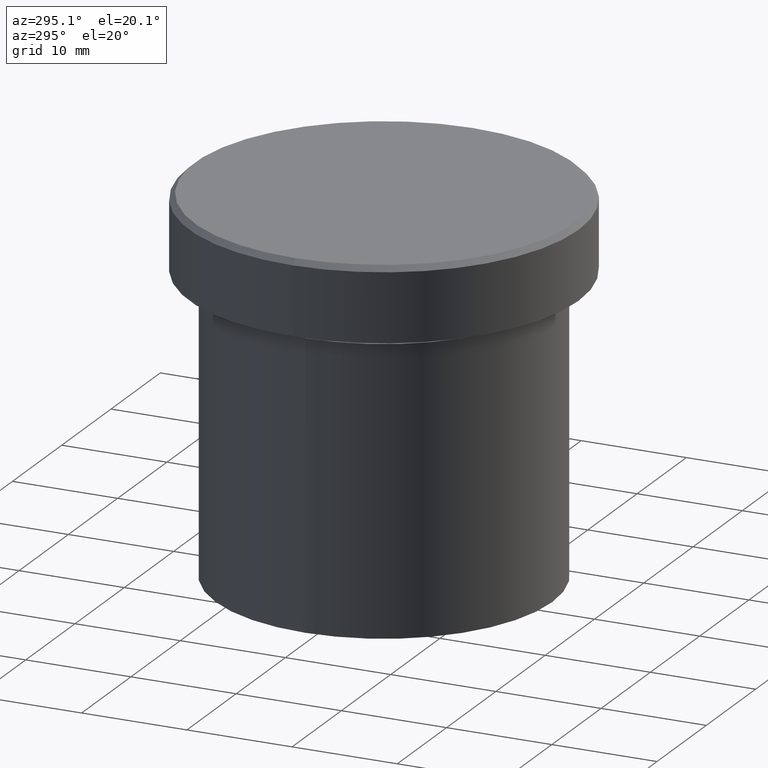
[diagram: clean part render]
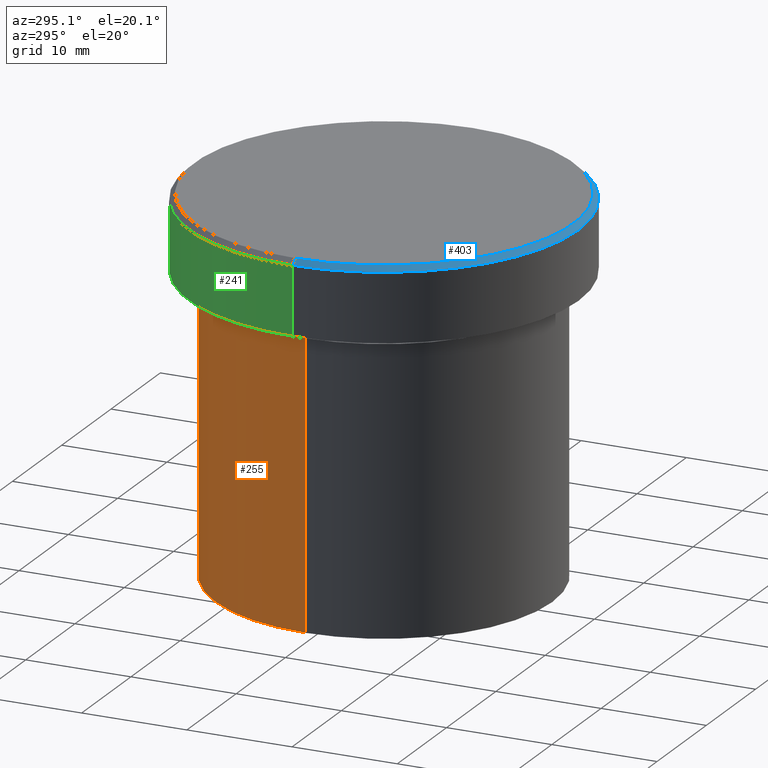
[diagram: same view with three faces highlighted in distinct colors, each labeled with its STEP entity id]
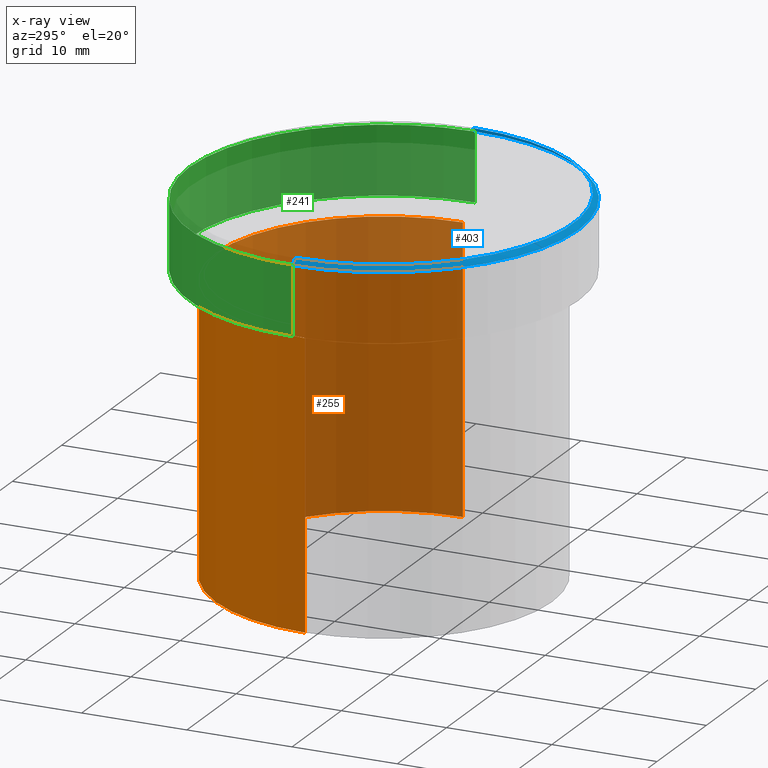
[diagram: x-ray of the same camera — body ghosted, the three highlighted faces saturated]
A machine part, auxiliary view with three faces highlighted in distinct colors.
The next image is the same camera in x-ray (body ghosted, the three faces saturated) — at least one of them is partly hidden behind the body in this view.
Their STEP definitions:

[orange] entity #255 — the highlighted cylindrical surface (partial cylindrical patch) has radius 16 mm, axis along (-0, -0, 1).
#43 = DIRECTION ( 'NONE',  ( -0.000000000000000000, -0.000000000000000000, 1.000000000000000000 ) ) ;
#45 = FACE_OUTER_BOUND ( 'NONE', #295, .T. ) ;
#56 = CARTESIAN_POINT ( 'NONE',  ( 16.00000000000000000, 0.000000000000000000, -8.000000000000000000 ) ) ;
#60 = VERTEX_POINT ( 'NONE', #56 ) ;
#61 = VERTEX_POINT ( 'NONE', #222 ) ;
#68 = VERTEX_POINT ( 'NONE', #287 ) ;
#86 = EDGE_CURVE ( 'NONE', #60, #61, #267, .T. ) ;
#94 = ORIENTED_EDGE ( 'NONE', *, *, #230, .T. ) ;
#103 = AXIS2_PLACEMENT_3D ( 'NONE', #242, #363, #205 ) ;
#118 = CARTESIAN_POINT ( 'NONE',  ( 0.000000000000000000, 0.000000000000000000, -8.000000000000000000 ) ) ;
#121 = AXIS2_PLACEMENT_3D ( 'NONE', #118, #317, #246 ) ;
#129 = CARTESIAN_POINT ( 'NONE',  ( -16.00000000000000000, 1.959434878635765131E-15, -35.00000000000000000 ) ) ;
#140 = LINE ( 'NONE', #237, #366 ) ;
#168 = CARTESIAN_POINT ( 'NONE',  ( 0.000000000000000000, 0.000000000000000000, -35.00000000000000000 ) ) ;
#205 = DIRECTION ( 'NONE',  ( 1.000000000000000000, 0.000000000000000000, 0.000000000000000000 ) ) ;
#222 = CARTESIAN_POINT ( 'NONE',  ( -16.00000000000000000, 1.959434878635765131E-15, -8.000000000000000000 ) ) ;
#226 = VECTOR ( 'NONE', #322, 1000.000000000000000 ) ;
#227 = LINE ( 'NONE', #352, #226 ) ;
#230 = EDGE_CURVE ( 'NONE', #232, #61, #227, .T. ) ;
#232 = VERTEX_POINT ( 'NONE', #129 ) ;
#237 = CARTESIAN_POINT ( 'NONE',  ( 16.00000000000000000, 0.000000000000000000, 0.000000000000000000 ) ) ;
#242 = CARTESIAN_POINT ( 'NONE',  ( 0.000000000000000000, 0.000000000000000000, 0.000000000000000000 ) ) ;
#245 = CIRCLE ( 'NONE', #312, 16.00000000000000000 ) ;
#246 = DIRECTION ( 'NONE',  ( 1.000000000000000000, 0.000000000000000000, 0.000000000000000000 ) ) ;
#255 = ADVANCED_FACE ( 'NONE', ( #45 ), #296, .T. ) ;
#267 = CIRCLE ( 'NONE', #121, 16.00000000000000000 ) ;
#268 = DIRECTION ( 'NONE',  ( 1.000000000000000000, 0.000000000000000000, 0.000000000000000000 ) ) ;
#274 = DIRECTION ( 'NONE',  ( -0.000000000000000000, -0.000000000000000000, 1.000000000000000000 ) ) ;
#287 = CARTESIAN_POINT ( 'NONE',  ( 16.00000000000000000, 0.000000000000000000, -35.00000000000000000 ) ) ;
#291 = ORIENTED_EDGE ( 'NONE', *, *, #316, .T. ) ;
#295 = EDGE_LOOP ( 'NONE', ( #291, #94, #303, #356 ) ) ;
#296 = CYLINDRICAL_SURFACE ( 'NONE', #103, 16.00000000000000000 ) ;
#303 = ORIENTED_EDGE ( 'NONE', *, *, #86, .F. ) ;
#312 = AXIS2_PLACEMENT_3D ( 'NONE', #168, #274, #268 ) ;
#316 = EDGE_CURVE ( 'NONE', #68, #232, #245, .T. ) ;
#317 = DIRECTION ( 'NONE',  ( -0.000000000000000000, -0.000000000000000000, 1.000000000000000000 ) ) ;
#322 = DIRECTION ( 'NONE',  ( -0.000000000000000000, -0.000000000000000000, 1.000000000000000000 ) ) ;
#340 = EDGE_CURVE ( 'NONE', #68, #60, #140, .T. ) ;
#352 = CARTESIAN_POINT ( 'NONE',  ( -16.00000000000000000, 1.959434878635765131E-15, 0.000000000000000000 ) ) ;
#356 = ORIENTED_EDGE ( 'NONE', *, *, #340, .F. ) ;
#363 = DIRECTION ( 'NONE',  ( -0.000000000000000000, -0.000000000000000000, 1.000000000000000000 ) ) ;
#366 = VECTOR ( 'NONE', #43, 1000.000000000000000 ) ;

[blue] entity #403 — the highlighted conical surface has half-angle 45 deg.
#3 = VERTEX_POINT ( 'NONE', #77 ) ;
#4 = CIRCLE ( 'NONE', #54, 17.99999999999999645 ) ;
#8 = CARTESIAN_POINT ( 'NONE',  ( 18.50000000000000000, 0.000000000000000000, -0.4999999999999936162 ) ) ;
#11 = DIRECTION ( 'NONE',  ( -0.7071067811865549002, 0.000000000000000000, -0.7071067811865402453 ) ) ;
#12 = DIRECTION ( 'NONE',  ( -0.000000000000000000, -0.000000000000000000, 1.000000000000000000 ) ) ;
#13 = CIRCLE ( 'NONE', #188, 18.50000000000000000 ) ;
#14 = CONICAL_SURFACE ( 'NONE', #235, 17.99999999999999645, 0.7853981633974587151 ) ;
#28 = EDGE_CURVE ( 'NONE', #387, #161, #13, .T. ) ;
#29 = CARTESIAN_POINT ( 'NONE',  ( -17.99999999999999645, 0.000000000000000000, 0.000000000000000000 ) ) ;
#54 = AXIS2_PLACEMENT_3D ( 'NONE', #300, #12, #365 ) ;
#69 = CARTESIAN_POINT ( 'NONE',  ( -17.99999999999999645, 0.000000000000000000, 0.000000000000000000 ) ) ;
#77 = CARTESIAN_POINT ( 'NONE',  ( 17.99999999999999645, 2.234980408443919215E-15, 0.000000000000000000 ) ) ;
#96 = ORIENTED_EDGE ( 'NONE', *, *, #174, .F. ) ;
#125 = DIRECTION ( 'NONE',  ( 0.7071067811865549002, 8.659560562355021605E-17, -0.7071067811865402453 ) ) ;
#132 = ORIENTED_EDGE ( 'NONE', *, *, #262, .T. ) ;
#152 = VECTOR ( 'NONE', #11, 1000.000000000000114 ) ;
#161 = VERTEX_POINT ( 'NONE', #379 ) ;
#164 = ORIENTED_EDGE ( 'NONE', *, *, #345, .F. ) ;
#170 = CARTESIAN_POINT ( 'NONE',  ( 0.000000000000000000, 0.000000000000000000, 0.000000000000000000 ) ) ;
#174 = EDGE_CURVE ( 'NONE', #3, #387, #355, .T. ) ;
#180 = VECTOR ( 'NONE', #125, 1000.000000000000114 ) ;
#188 = AXIS2_PLACEMENT_3D ( 'NONE', #220, #280, #377 ) ;
#202 = FACE_OUTER_BOUND ( 'NONE', #228, .T. ) ;
#220 = CARTESIAN_POINT ( 'NONE',  ( 0.000000000000000000, 0.000000000000000000, -0.4999999999999936162 ) ) ;
#228 = EDGE_LOOP ( 'NONE', ( #96, #164, #132, #326 ) ) ;
#229 = VERTEX_POINT ( 'NONE', #29 ) ;
#231 = CARTESIAN_POINT ( 'NONE',  ( 17.99999999999999645, 2.204364238465235033E-15, 0.000000000000000000 ) ) ;
#235 = AXIS2_PLACEMENT_3D ( 'NONE', #170, #301, #330 ) ;
#262 = EDGE_CURVE ( 'NONE', #229, #161, #364, .T. ) ;
#280 = DIRECTION ( 'NONE',  ( 0.000000000000000000, 0.000000000000000000, -1.000000000000000000 ) ) ;
#300 = CARTESIAN_POINT ( 'NONE',  ( 0.000000000000000000, 0.000000000000000000, 0.000000000000000000 ) ) ;
#301 = DIRECTION ( 'NONE',  ( 0.000000000000000000, 0.000000000000000000, -1.000000000000000000 ) ) ;
#326 = ORIENTED_EDGE ( 'NONE', *, *, #28, .F. ) ;
#330 = DIRECTION ( 'NONE',  ( -1.000000000000000000, 0.000000000000000000, 0.000000000000000000 ) ) ;
#345 = EDGE_CURVE ( 'NONE', #229, #3, #4, .T. ) ;
#355 = LINE ( 'NONE', #231, #180 ) ;
#364 = LINE ( 'NONE', #69, #152 ) ;
#365 = DIRECTION ( 'NONE',  ( 1.000000000000000000, 0.000000000000000000, 0.000000000000000000 ) ) ;
#377 = DIRECTION ( 'NONE',  ( 1.000000000000000000, 0.000000000000000000, 0.000000000000000000 ) ) ;
#379 = CARTESIAN_POINT ( 'NONE',  ( -18.50000000000000000, 2.265596578422603396E-15, -0.4999999999999936162 ) ) ;
#387 = VERTEX_POINT ( 'NONE', #8 ) ;
#403 = ADVANCED_FACE ( 'NONE', ( #202 ), #14, .T. ) ;

[green] entity #241 — the highlighted cylindrical surface (partial cylindrical patch) has radius 18.5 mm, axis along (-0, -0, 1).
#7 = EDGE_LOOP ( 'NONE', ( #349, #42, #128, #264 ) ) ;
#8 = CARTESIAN_POINT ( 'NONE',  ( 18.50000000000000000, 0.000000000000000000, -0.4999999999999936162 ) ) ;
#18 = CARTESIAN_POINT ( 'NONE',  ( -18.50000000000000000, 2.265596578422603396E-15, -6.999999999999998224 ) ) ;
#42 = ORIENTED_EDGE ( 'NONE', *, *, #111, .T. ) ;
#47 = CIRCLE ( 'NONE', #225, 18.50000000000000000 ) ;
#55 = CARTESIAN_POINT ( 'NONE',  ( -18.50000000000000000, 2.265596578422603396E-15, 0.000000000000000000 ) ) ;
#58 = DIRECTION ( 'NONE',  ( 0.000000000000000000, 0.000000000000000000, -1.000000000000000000 ) ) ;
#67 = VECTOR ( 'NONE', #334, 1000.000000000000000 ) ;
#78 = AXIS2_PLACEMENT_3D ( 'NONE', #290, #58, #361 ) ;
#95 = CARTESIAN_POINT ( 'NONE',  ( 0.000000000000000000, 0.000000000000000000, 0.000000000000000000 ) ) ;
#111 = EDGE_CURVE ( 'NONE', #139, #161, #114, .T. ) ;
#114 = LINE ( 'NONE', #55, #407 ) ;
#128 = ORIENTED_EDGE ( 'NONE', *, *, #162, .T. ) ;
#133 = EDGE_CURVE ( 'NONE', #159, #139, #47, .T. ) ;
#138 = LINE ( 'NONE', #302, #67 ) ;
#139 = VERTEX_POINT ( 'NONE', #18 ) ;
#147 = AXIS2_PLACEMENT_3D ( 'NONE', #95, #157, #325 ) ;
#157 = DIRECTION ( 'NONE',  ( -0.000000000000000000, -0.000000000000000000, 1.000000000000000000 ) ) ;
#159 = VERTEX_POINT ( 'NONE', #179 ) ;
#161 = VERTEX_POINT ( 'NONE', #379 ) ;
#162 = EDGE_CURVE ( 'NONE', #161, #387, #281, .T. ) ;
#178 = DIRECTION ( 'NONE',  ( -0.000000000000000000, -0.000000000000000000, 1.000000000000000000 ) ) ;
#179 = CARTESIAN_POINT ( 'NONE',  ( 18.50000000000000000, 0.000000000000000000, -6.999999999999998224 ) ) ;
#194 = CYLINDRICAL_SURFACE ( 'NONE', #147, 18.50000000000000000 ) ;
#212 = DIRECTION ( 'NONE',  ( 1.000000000000000000, 0.000000000000000000, 0.000000000000000000 ) ) ;
#225 = AXIS2_PLACEMENT_3D ( 'NONE', #406, #374, #212 ) ;
#241 = ADVANCED_FACE ( 'NONE', ( #263 ), #194, .T. ) ;
#263 = FACE_OUTER_BOUND ( 'NONE', #7, .T. ) ;
#264 = ORIENTED_EDGE ( 'NONE', *, *, #333, .F. ) ;
#281 = CIRCLE ( 'NONE', #78, 18.50000000000000000 ) ;
#290 = CARTESIAN_POINT ( 'NONE',  ( 0.000000000000000000, 0.000000000000000000, -0.4999999999999936162 ) ) ;
#302 = CARTESIAN_POINT ( 'NONE',  ( 18.50000000000000000, 0.000000000000000000, 0.000000000000000000 ) ) ;
#325 = DIRECTION ( 'NONE',  ( 1.000000000000000000, 0.000000000000000000, 0.000000000000000000 ) ) ;
#333 = EDGE_CURVE ( 'NONE', #159, #387, #138, .T. ) ;
#334 = DIRECTION ( 'NONE',  ( -0.000000000000000000, -0.000000000000000000, 1.000000000000000000 ) ) ;
#349 = ORIENTED_EDGE ( 'NONE', *, *, #133, .T. ) ;
#361 = DIRECTION ( 'NONE',  ( 1.000000000000000000, 0.000000000000000000, 0.000000000000000000 ) ) ;
#374 = DIRECTION ( 'NONE',  ( -0.000000000000000000, -0.000000000000000000, 1.000000000000000000 ) ) ;
#379 = CARTESIAN_POINT ( 'NONE',  ( -18.50000000000000000, 2.265596578422603396E-15, -0.4999999999999936162 ) ) ;
#387 = VERTEX_POINT ( 'NONE', #8 ) ;
#406 = CARTESIAN_POINT ( 'NONE',  ( 0.000000000000000000, 0.000000000000000000, -6.999999999999998224 ) ) ;
#407 = VECTOR ( 'NONE', #178, 1000.000000000000000 ) ;